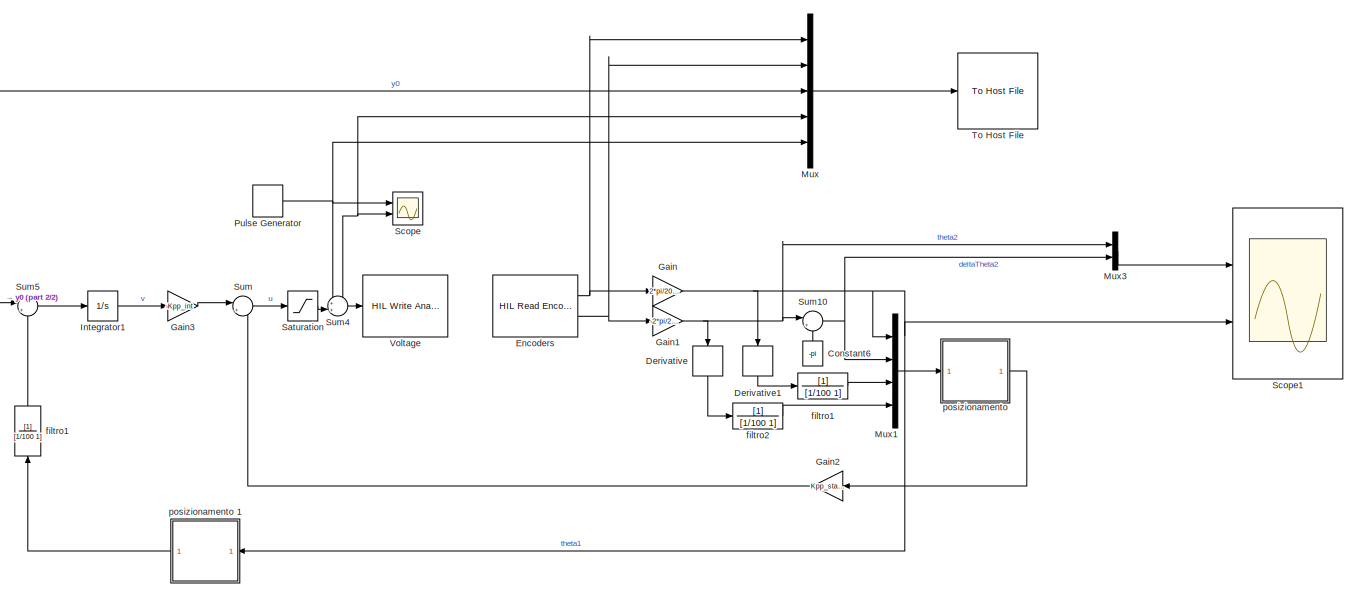
[diagram: root canvas - part 1/2, most of the canvas]
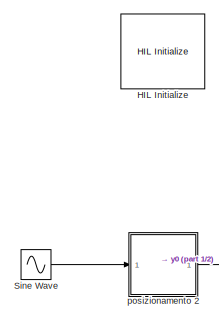
[diagram: root canvas - part 2/2, middle left region]
MODEL slx_1bbe0dabba82
KIND model
CONFIG AbsTol = auto
CONFIG EnableMultiTasking = on
CONFIG FixedStep = 0.002
CONFIG MaxStep = auto
CONFIG MinStep = auto
CONFIG PostLoadFcn = qc_set_target_type(getConfigSet(bdroot, 'QUARC Default Target Configuration'));
CONFIG RelTol = 1e-3
CONFIG SampleTimeConstraint = Unconstrained
CONFIG Solver = ode1
CONFIG SolverName = ode1
CONFIG StartTime = 0.0
CONFIG StopTime = inf
BLOCK [Constant] Constant6
  Value = -pi
BLOCK [Derivative] Derivative
BLOCK [Derivative] Derivative1
BLOCK [Reference] Encoders  REF=quarc_library/Data Acquisition/Generic/Timebases/HIL Read Encoder
Timebase
  AttributesFormatString = (%<object_name>)
  Ports = [0, 2]
  SourceBlock = quarc_library/Data Acquisition/Generic/Timebases/HIL Read Encoder\nTimebase
  SourceProductName = QUARC Targets
  SourceType = HIL Read Encoder Timebase
  UserDataPersistent = on
BLOCK [Gain] Gain
  Gain = 2*pi/2048
  OutDataTypeStr = Inherit: Inherit via internal rule
  ParamDataTypeStr = Inherit: Inherit via internal rule
  SaturateOnIntegerOverflow = off
BLOCK [Gain] Gain1
  Gain = -2*pi/2048
  OutDataTypeStr = Inherit: Inherit via internal rule
  ParamDataTypeStr = Inherit: Inherit via internal rule
  SaturateOnIntegerOverflow = off
BLOCK [Gain] Gain2
  Gain = Kpp_state
  Multiplication = Matrix(K*u)
  OutDataTypeStr = Inherit: Inherit via internal rule
  ParamDataTypeStr = Inherit: Inherit via internal rule
  SaturateOnIntegerOverflow = off
BLOCK [Gain] Gain3
  Gain = -Kpp_int
  Multiplication = Matrix(K*u)
  OutDataTypeStr = Inherit: Inherit via internal rule
  ParamDataTypeStr = Inherit: Inherit via internal rule
  SaturateOnIntegerOverflow = off
BLOCK [Reference] HIL Initialize  REF=quarc_library/Data Acquisition/Generic/Configuration/HIL Initialize
  AttributesFormatString = %<object_name> (%<board_type>-%<board_number>)
  Ports = []
  Priority = -99
  SourceBlock = quarc_library/Data Acquisition/Generic/Configuration/HIL Initialize
  SourceProductName = QUARC Targets
  SourceType = HIL Initialize
  UserDataPersistent = on
BLOCK [Integrator] Integrator1
  Ports = [1, 1]
BLOCK [Mux] Mux
  DisplayOption = bar
  Inputs = 5
  Ports = [5, 1]
BLOCK [Mux] Mux1
  DisplayOption = bar
  Ports = [4, 1]
BLOCK [Mux] Mux3
  DisplayOption = bar
  Inputs = 2
  Ports = [2, 1]
BLOCK [DiscretePulseGenerator] Pulse Generator
  Amplitude = 0
  Period = 10
  Ports = [0, 1]
  PulseType = Time based
BLOCK [Saturate] Saturation
  InputPortMap = u0
  LowerLimit = -10
  Ports = [1, 1]
  UpperLimit = 10
BLOCK [Scope] Scope
  Floating = off
  NumInputPorts = 2
  Ports = [2]
  ScopeSpecificationString = Simulink.scopes.TimeScopeBlockCfg('CurrentConfiguration', extmgr.ConfigurationSet(extmgr.Configuration('Core','General UI',true),extmgr.Configuration('Core','Source UI',true),extmgr.Configuration('Sources','WiredSimulink',true,'DataLoggingVariableName','ScopeData1'),extmgr.Configuration('Visuals','Time Domain',true,'SerializedDisplays',{struct('MinYLimReal','-6.86351','MaxYLimReal','11.87372','YLa...<+1436ch>
BLOCK [Scope] Scope1
  Floating = off
  NumInputPorts = 2
  Ports = [2]
  ScopeSpecificationString = Simulink.scopes.TimeScopeBlockCfg('CurrentConfiguration', extmgr.ConfigurationSet(extmgr.Configuration('Core','General UI',true),extmgr.Configuration('Core','Source UI',true),extmgr.Configuration('Sources','WiredSimulink',true,'DataLoggingVariableName','ScopeData1'),extmgr.Configuration('Visuals','Time Domain',true,'SerializedDisplays',{struct('MinYLimReal','-4.08154','MaxYLimReal','4.09074','YLab...<+2204ch>
BLOCK [Sin] Sine Wave
  Amplitude = 0.8
  Frequency = 0.5
  Ports = [0, 1]
  SampleTime = 0
BLOCK [Sum] Sum
  IconShape = round
  InputSameDT = off
  Inputs = |+-
  OutDataTypeStr = Inherit: Inherit via internal rule
  Ports = [2, 1]
  SaturateOnIntegerOverflow = off
BLOCK [Sum] Sum10
  IconShape = round
  InputSameDT = off
  Inputs = |++
  OutDataTypeStr = Inherit: Inherit via internal rule
  Ports = [2, 1]
  SaturateOnIntegerOverflow = off
BLOCK [Sum] Sum4
  IconShape = round
  InputSameDT = off
  Inputs = ++|
  OutDataTypeStr = Inherit: Inherit via internal rule
  Ports = [2, 1]
  SaturateOnIntegerOverflow = off
BLOCK [Sum] Sum5
  IconShape = round
  InputSameDT = off
  Inputs = |+-
  OutDataTypeStr = Inherit: Inherit via internal rule
  Ports = [2, 1]
  SaturateOnIntegerOverflow = off
BLOCK [Reference] To Host File  REF=quarc_library/Sinks/To Host/To Host File
  AttributesFormatString = %<final_file_name>
  Ports = [1]
  SourceBlock = quarc_library/Sinks/To Host/To Host File
  SourceProductName = QUARC Targets
  SourceType = To Host File
BLOCK [Reference] Voltage  REF=quarc_library/Data Acquisition/Generic/Immediate I//O/HIL Write Analog
  AttributesFormatString = (%<object_name>)
  Ports = [1]
  SourceBlock = quarc_library/Data Acquisition/Generic/Immediate I//O/HIL Write Analog
  SourceProductName = QUARC Targets
  SourceType = HIL Write Analog
  UserDataPersistent = on
BLOCK [TransferFcn] filtro1
  Denominator = [1/100 1]
BLOCK [TransferFcn] filtro1 
  Denominator = [1/100 1]
BLOCK [TransferFcn] filtro2
  Denominator = [1/100 1]
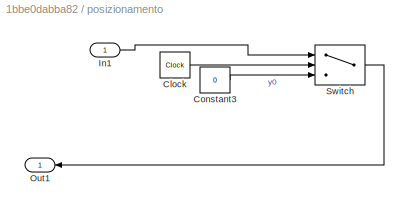
BLOCK [SubSystem] posizionamento 
  Ports = [1, 1]
  RequestExecContextInheritance = off
BLOCK [Clock] posizionamento /Clock
  DisplayTime = on
BLOCK [Constant] posizionamento /Constant3
  Value = 0
BLOCK [Inport] posizionamento /In1
  IconDisplay = Port number
BLOCK [Outport] posizionamento /Out1
  IconDisplay = Port number
BLOCK [Switch] posizionamento /Switch
  Criteria = u2 > Threshold
  InputSameDT = off
  SaturateOnIntegerOverflow = off
  Threshold = 5
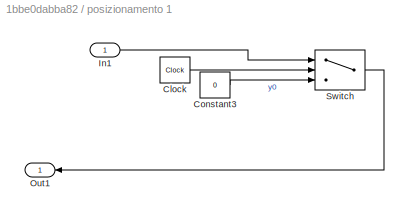
BLOCK [SubSystem] posizionamento 1
  Ports = [1, 1]
  RequestExecContextInheritance = off
BLOCK [Clock] posizionamento 1/Clock
  DisplayTime = on
BLOCK [Constant] posizionamento 1/Constant3
  Value = 0
BLOCK [Inport] posizionamento 1/In1
  IconDisplay = Port number
BLOCK [Outport] posizionamento 1/Out1
  IconDisplay = Port number
BLOCK [Switch] posizionamento 1/Switch
  Criteria = u2 > Threshold
  InputSameDT = off
  SaturateOnIntegerOverflow = off
  Threshold = 5
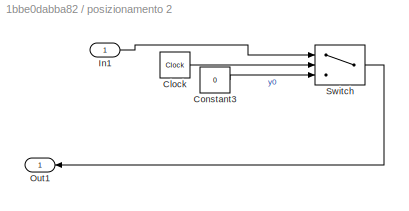
BLOCK [SubSystem] posizionamento 2
  Ports = [1, 1]
  RequestExecContextInheritance = off
BLOCK [Clock] posizionamento 2/Clock
  DisplayTime = on
BLOCK [Constant] posizionamento 2/Constant3
  Value = 0
BLOCK [Inport] posizionamento 2/In1
  IconDisplay = Port number
BLOCK [Outport] posizionamento 2/Out1
  IconDisplay = Port number
BLOCK [Switch] posizionamento 2/Switch
  Criteria = u2 > Threshold
  InputSameDT = off
  SaturateOnIntegerOverflow = off
  Threshold = 5
LINE Constant6:1 -> Sum10:2
LINE Derivative1:1 -> filtro1 :1
LINE Derivative:1 -> filtro2:1
NET Encoders:1 -> Gain:1, Mux:1
NET Encoders:2 -> Gain1:1, Mux:2
NET Gain1:1 -> Derivative:1, Mux3:1, Sum10:1
LINE Gain2:1 -> Sum:2
LINE Gain3:1 -> Sum:1
NET Gain:1 -> Derivative1:1, Mux1:1, Scope1:2, posizionamento 1:1
LINE Integrator1:1 -> Gain3:1
LINE Mux1:1 -> posizionamento :1
LINE Mux3:1 -> Scope1:1
LINE Mux:1 -> To Host File:1
NET Pulse Generator:1 -> Mux:5, Scope:1, Sum4:1
LINE Saturation:1 -> Sum4:2
LINE Sine Wave:1 -> posizionamento 2:1
NET Sum10:1 -> Mux1:2, Mux3:2
NET Sum4:1 -> Mux:4, Scope:2, Voltage:1
LINE Sum5:1 -> Integrator1:1
LINE Sum:1 -> Saturation:1
LINE filtro1 :1 -> Mux1:3
LINE filtro1:1 -> Sum5:2
LINE filtro2:1 -> Mux1:4
LINE posizionamento /Clock:1 -> posizionamento /Switch:2
LINE posizionamento /Constant3:1 -> posizionamento /Switch:3
LINE posizionamento /In1:1 -> posizionamento /Switch:1
LINE posizionamento /Switch:1 -> posizionamento /Out1:1
LINE posizionamento 1/Clock:1 -> posizionamento 1/Switch:2
LINE posizionamento 1/Constant3:1 -> posizionamento 1/Switch:3
LINE posizionamento 1/In1:1 -> posizionamento 1/Switch:1
LINE posizionamento 1/Switch:1 -> posizionamento 1/Out1:1
LINE posizionamento 1:1 -> filtro1:1
LINE posizionamento 2/Clock:1 -> posizionamento 2/Switch:2
LINE posizionamento 2/Constant3:1 -> posizionamento 2/Switch:3
LINE posizionamento 2/In1:1 -> posizionamento 2/Switch:1
LINE posizionamento 2/Switch:1 -> posizionamento 2/Out1:1
NET posizionamento 2:1 -> Mux:3, Sum5:1
LINE posizionamento :1 -> Gain2:1
note: NET lines group one-source signal fan-out (src -> all destinations, sorted); 1:1 wires keep LINE
